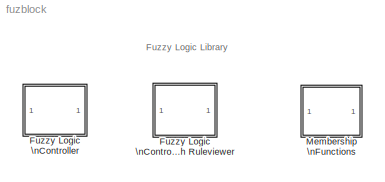
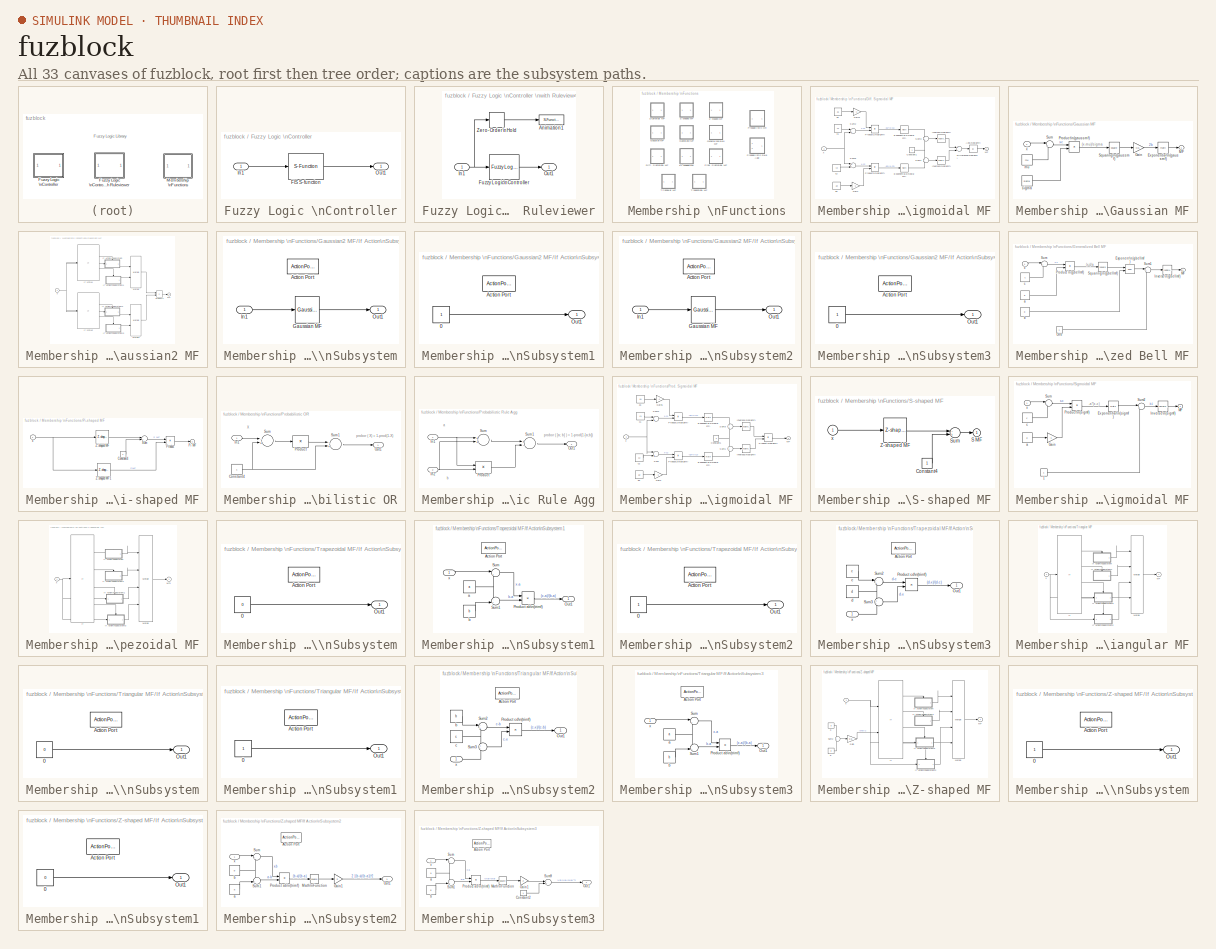
[diagram: thumbnail index - all 33 canvases of the model, root first then tree order]
MODEL fuzblock
KIND library
BLOCK [SubSystem] Fuzzy Logic \nController
  EnableExecutionContextPropagation = on
  MaskDescription = FIS
  MaskDisplay = plot(0, -0.3, 6, -0.3, 0, 1.2, 6, 1.2, [0 6], [0 0], [1 2 3],[0 1 0],[2 3 4],[0 1 0],[3 4 5],[0 1 0])
  MaskEnableString = on
  MaskHelp = web(['file:///' docroot '/toolbox/fuzzy/fuzzylogiccontroller.html']);
  MaskIconFrame = on
  MaskIconOpaque = on
  MaskIconRotate = none
  MaskIconUnits = autoscale
  MaskInitialization = fis = fuzblockmask(gcb,fis);
  MaskPromptString = FIS File or Structure:
  MaskSelfModifiable = on
  MaskStyleString = edit
  MaskToolTipString = on
  MaskTunableValueString = on
  MaskType = FIS
  MaskVariables = fis=@1;
  MaskVisibilityString = on
  MinAlgLoopOccurrences = off
  Ports = [1, 1]
  TreatAsAtomicUnit = off
BLOCK [SubSystem] Fuzzy Logic \nController \nwith Ruleviewer
  EnableExecutionContextPropagation = on
  MaskCallbackString = |
  MaskDescription = FIS with a ruleviewer for fuzzy logic rules.
  MaskDisplay = plot(0, -0.3, 6, -0.3, 0, 1.2, 6, 1.2, [0 6], [0 0], [1 2 3],[0 1 0],[2 3 4],[0 1 0],[3 4 5],[0 1 0])
  MaskEnableString = on,on
  MaskHelp = web(['file:///' docroot '/toolbox/fuzzy/fuzzylogiccontrollerwithr.html']);
  MaskIconFrame = on
  MaskIconOpaque = on
  MaskIconRotate = none
  MaskIconUnits = autoscale
  MaskPromptString = FIS matrix|Refresh rate (sec)
  MaskStyleString = edit,edit
  MaskTabNameString = ,
  MaskToolTipString = on,on
  MaskTunableValueString = on,on
  MaskType = FIS
  MaskValueString = fis|2
  MaskVarAliasString = ,
  MaskVariables = fismatrix=@1;Ts=@2;
  MaskVisibilityString = on,on
  MinAlgLoopOccurrences = off
  Ports = [1, 1]
  TreatAsAtomicUnit = off
BLOCK [S-Function] Fuzzy Logic \nController \nwith Ruleviewer/Animation1
  FunctionName = animrule
  Parameters = fismatrix
  Ports = [1]
BLOCK [Reference] Fuzzy Logic \nController \nwith Ruleviewer/Fuzzy Logic\nController  REF=fuzblock/Fuzzy Logic \nController  (lib defined in mdl_858b3b3e7478)
  Ports = [1, 1]
  SourceBlock = fuzblock/Fuzzy Logic \nController
  SourceType = FIS
  fis = fismatrix
BLOCK [Inport] Fuzzy Logic \nController \nwith Ruleviewer/In1
  IconDisplay = Port number
  LatchInput = off
BLOCK [Outport] Fuzzy Logic \nController \nwith Ruleviewer/Out1
  BusOutputAsStruct = off
  IconDisplay = Port number
  InitialOutput = 0
BLOCK [ZeroOrderHold] Fuzzy Logic \nController \nwith Ruleviewer/Zero-Order\nHold
  SampleTime = Ts
BLOCK [S-Function] Fuzzy Logic \nController/FIS S-function
  FunctionName = sffis
  Parameters = fis
  Ports = [1, 1]
  SFunctionModules = sfsup
BLOCK [Inport] Fuzzy Logic \nController/In1
  IconDisplay = Port number
  LatchInput = off
BLOCK [Outport] Fuzzy Logic \nController/Out1
  BusOutputAsStruct = off
  IconDisplay = Port number
BLOCK [SubSystem] Membership \nFunctions
  EnableExecutionContextPropagation = on
  MaskDisplay = disp('MF')
  MaskIconFrame = on
  MaskIconOpaque = on
  MaskIconRotate = none
  MaskIconUnits = autoscale
  MaskType = MF Library
  MinAlgLoopOccurrences = off
  Ports = []
  TreatAsAtomicUnit = off
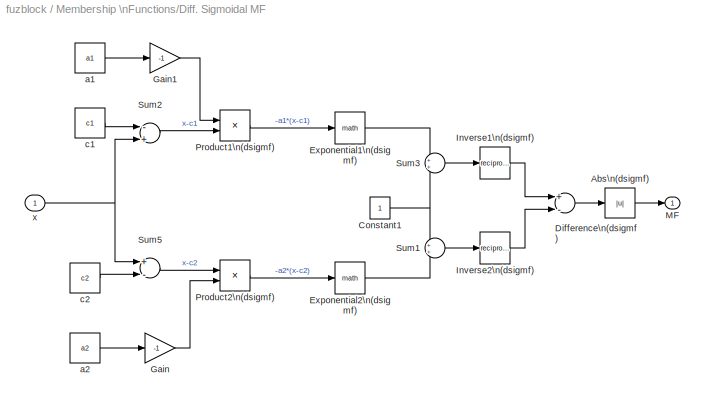
BLOCK [SubSystem] Membership \nFunctions/Diff. Sigmoidal MF
  EnableExecutionContextPropagation = on
  MaskCallbackString = |||
  MaskDescription = \"Difference of two sigmoids\" membership function. The two sigmoid curves are given by\n\n        fk ( x ) = 1 / ( 1 + exp( -ak ( x - ck) ) )      k=1,2\n\nThe parameters a1 and a2 control the slopes of the left and right curves. The parameters c1 and c2 control the points of inflection for the left and right curves. The parameters a1 and a2 should be positive.
  MaskDisplay = plot(x,y);
  MaskEnableString = on,on,on,on
  MaskHelp = web(['file:///' docroot '/toolbox/fuzzy/membershipfunctionslibrar.html']);
  MaskIconFrame = on
  MaskIconOpaque = on
  MaskIconRotate = none
  MaskIconUnits = autoscale
  MaskInitialization = x=-10:0.5:10;\nparams=[3 -5 1 5];\ny=dsigmf(x,params);
  MaskPromptString = Left curve a1:|Left curve c1:|Right curve a2:|Right curve c2:
  MaskStyleString = edit,edit,edit,edit
  MaskTabNameString = ,,,
  MaskToolTipString = on,on,on,on
  MaskTunableValueString = on,on,on,on
  MaskType = dsigmf
  MaskValueString = 3|-5|1|5
  MaskVarAliasString = ,,,
  MaskVariables = a1=@1;c1=@2;a2=@3;c2=@4;
  MaskVisibilityString = on,on,on,on
  MinAlgLoopOccurrences = off
  Ports = [1, 1]
  TreatAsAtomicUnit = off
BLOCK [Abs] Membership \nFunctions/Diff. Sigmoidal MF/Abs\n(dsigmf)
  ZeroCross = off
BLOCK [Constant] Membership \nFunctions/Diff. Sigmoidal MF/Constant1
BLOCK [Sum] Membership \nFunctions/Diff. Sigmoidal MF/Difference\n(dsigmf)
  Inputs = +-
  Ports = [2, 1]
BLOCK [Math] Membership \nFunctions/Diff. Sigmoidal MF/Exponential1\n(dsigmf)
  Ports = [1, 1]
BLOCK [Math] Membership \nFunctions/Diff. Sigmoidal MF/Exponential2\n(dsigmf)
  Ports = [1, 1]
BLOCK [Gain] Membership \nFunctions/Diff. Sigmoidal MF/Gain
  Gain = -1
BLOCK [Gain] Membership \nFunctions/Diff. Sigmoidal MF/Gain1
  Gain = -1
BLOCK [Math] Membership \nFunctions/Diff. Sigmoidal MF/Inverse1\n(dsigmf)
  Operator = reciprocal
  Ports = [1, 1]
BLOCK [Math] Membership \nFunctions/Diff. Sigmoidal MF/Inverse2\n(dsigmf)
  Operator = reciprocal
  Ports = [1, 1]
BLOCK [Outport] Membership \nFunctions/Diff. Sigmoidal MF/MF
  BusOutputAsStruct = off
  IconDisplay = Port number
BLOCK [Product] Membership \nFunctions/Diff. Sigmoidal MF/Product1\n(dsigmf)
  Inputs = **
  Ports = [2, 1]
  RndMeth = Floor
BLOCK [Product] Membership \nFunctions/Diff. Sigmoidal MF/Product2\n(dsigmf)
  Inputs = **
  Ports = [2, 1]
  RndMeth = Floor
BLOCK [Sum] Membership \nFunctions/Diff. Sigmoidal MF/Sum1
  IconShape = round
  Ports = [2, 1]
BLOCK [Sum] Membership \nFunctions/Diff. Sigmoidal MF/Sum2
  Inputs = -+
  Ports = [2, 1]
BLOCK [Sum] Membership \nFunctions/Diff. Sigmoidal MF/Sum3
  IconShape = round
  Ports = [2, 1]
BLOCK [Sum] Membership \nFunctions/Diff. Sigmoidal MF/Sum5
  Inputs = +-
  Ports = [2, 1]
BLOCK [Constant] Membership \nFunctions/Diff. Sigmoidal MF/a1
  Value = a1
BLOCK [Constant] Membership \nFunctions/Diff. Sigmoidal MF/a2
  Value = a2
BLOCK [Constant] Membership \nFunctions/Diff. Sigmoidal MF/c1
  Value = c1
BLOCK [Constant] Membership \nFunctions/Diff. Sigmoidal MF/c2
  Value = c2
BLOCK [Inport] Membership \nFunctions/Diff. Sigmoidal MF/x
  IconDisplay = Port number
  LatchInput = off
BLOCK [SubSystem] Membership \nFunctions/Gaussian MF
  EnableExecutionContextPropagation = on
  MaskCallbackString = |
  MaskDescription = Symmetric Gaussian membership function given by\n\n        f ( x ) = exp ^ ( ( - 0.5 ( x - c) ^ 2 ) / sigma ^ 2 )\n\nwhere c is the mean and sigma is the variance.
  MaskDisplay = plot(x,y);
  MaskEnableString = on,on
  MaskHelp = web(['file:///' docroot '/toolbox/fuzzy/membershipfunctionslibrar.html']);
  MaskIconFrame = on
  MaskIconOpaque = on
  MaskIconRotate = none
  MaskIconUnits = autoscale
  MaskInitialization = x=-10:0.5:10;\nparams=[7 0];\ny=gaussmf(x,params);
  MaskPromptString = Variance sigma:|Mean c:
  MaskStyleString = edit,edit
  MaskTabNameString = ,
  MaskToolTipString = on,on
  MaskTunableValueString = on,on
  MaskType = gaussmf
  MaskValueString = 1|0
  MaskVarAliasString = ,
  MaskVariables = sigma=@1;mu=@2;
  MaskVisibilityString = on,on
  MinAlgLoopOccurrences = off
  Ports = [1, 1]
  TreatAsAtomicUnit = off
BLOCK [Math] Membership \nFunctions/Gaussian MF/Exponential\n(gaussmf)
  Ports = [1, 1]
BLOCK [Gain] Membership \nFunctions/Gaussian MF/Gain
  Gain = -0.5
BLOCK [Outport] Membership \nFunctions/Gaussian MF/MF
  BusOutputAsStruct = off
  IconDisplay = Port number
BLOCK [Product] Membership \nFunctions/Gaussian MF/Product\n(gaussmf)
  Inputs = */
  Ports = [2, 1]
  RndMeth = Floor
BLOCK [Math] Membership \nFunctions/Gaussian MF/Squaring\n(gaussmf)
  Operator = square
  Ports = [1, 1]
BLOCK [Sum] Membership \nFunctions/Gaussian MF/Sum
  IconShape = round
  Inputs = |+-
  Ports = [2, 1]
BLOCK [Constant] Membership \nFunctions/Gaussian MF/mu
  Value = mu
BLOCK [Constant] Membership \nFunctions/Gaussian MF/sigma
  Value = sigma
BLOCK [Inport] Membership \nFunctions/Gaussian MF/x
  IconDisplay = Port number
  LatchInput = off
BLOCK [SubSystem] Membership \nFunctions/Gaussian2 MF
  EnableExecutionContextPropagation = on
  MaskCallbackString = |||
  MaskDescription = \"Combination of two Gaussians\" membership function. The two Gaussian functions are given by\n\n        fk ( x ) = exp ^ ( ( - 0.5 ( x - ck) ^ 2 ) / sigmak ^ 2 )    k=1,2\n\nThe parameters c1 and sigma1 are the mean and variance defining the leftmost curve. The parameters c2 and sigma2 are the mean and variance defining the rightmost curve.
  MaskDisplay = plot(x,y);
  MaskEnableString = on,on,on,on
  MaskHelp = web(['file:///' docroot '/toolbox/fuzzy/membershipfunctionslibrar.html']);
  MaskIconFrame = on
  MaskIconOpaque = on
  MaskIconRotate = none
  MaskIconUnits = autoscale
  MaskInitialization = x=-10:0.5:10;\nparams=[3 -1 1 5];\ny=gauss2mf(x,params);
  MaskPromptString = Variance for left curve sigma1:|Mean for left curve c1:|Variance for right curve sigma2:|Mean for right curve c2:
  MaskStyleString = edit,edit,edit,edit
  MaskTabNameString = ,,,
  MaskToolTipString = on,on,on,on
  MaskTunableValueString = on,on,on,on
  MaskType = gauss2mf
  MaskValueString = 3|-1|1|5
  MaskVarAliasString = ,,,
  MaskVariables = sigma1=@1;mu1=@2;sigma2=@3;mu2=@4;
  MaskVisibilityString = on,on,on,on
  MinAlgLoopOccurrences = off
  Ports = [1, 1]
  TreatAsAtomicUnit = off
BLOCK [SubSystem] Membership \nFunctions/Gaussian2 MF/If Action\nSubsystem
  EnableExecutionContextPropagation = on
  MinAlgLoopOccurrences = off
  Ports = [1, 1, 0, 0, 0, 0, 0, 1]
  TreatAsAtomicUnit = on
BLOCK [ActionPort] Membership \nFunctions/Gaussian2 MF/If Action\nSubsystem/Action Port
BLOCK [Reference] Membership \nFunctions/Gaussian2 MF/If Action\nSubsystem/Gaussian MF  REF=fuzblock/Membership \nFunctions/Gaussian MF  (lib defined in mdl_858b3b3e7478)
  Ports = [1, 1]
  ShowPortLabels = on
  SourceBlock = fuzblock/Membership \nFunctions/Gaussian MF
  SourceType = gaussmf
  mu = mu1
  sigma = sigma1
BLOCK [Inport] Membership \nFunctions/Gaussian2 MF/If Action\nSubsystem/In1
  IconDisplay = Port number
  LatchInput = off
BLOCK [Outport] Membership \nFunctions/Gaussian2 MF/If Action\nSubsystem/Out1
  BusOutputAsStruct = off
  IconDisplay = Port number
  InitialOutput = 0
BLOCK [SubSystem] Membership \nFunctions/Gaussian2 MF/If Action\nSubsystem1
  EnableExecutionContextPropagation = on
  MinAlgLoopOccurrences = off
  Ports = [0, 1, 0, 0, 0, 0, 0, 1]
  TreatAsAtomicUnit = on
BLOCK [Constant] Membership \nFunctions/Gaussian2 MF/If Action\nSubsystem1/0
BLOCK [ActionPort] Membership \nFunctions/Gaussian2 MF/If Action\nSubsystem1/Action Port
BLOCK [Outport] Membership \nFunctions/Gaussian2 MF/If Action\nSubsystem1/Out1
  BusOutputAsStruct = off
  IconDisplay = Port number
  InitialOutput = 1
BLOCK [SubSystem] Membership \nFunctions/Gaussian2 MF/If Action\nSubsystem2
  EnableExecutionContextPropagation = on
  MinAlgLoopOccurrences = off
  Ports = [1, 1, 0, 0, 0, 0, 0, 1]
  TreatAsAtomicUnit = on
BLOCK [ActionPort] Membership \nFunctions/Gaussian2 MF/If Action\nSubsystem2/Action Port
BLOCK [Reference] Membership \nFunctions/Gaussian2 MF/If Action\nSubsystem2/Gaussian MF  REF=fuzblock/Membership \nFunctions/Gaussian MF  (lib defined in mdl_858b3b3e7478)
  Ports = [1, 1]
  ShowPortLabels = on
  SourceBlock = fuzblock/Membership \nFunctions/Gaussian MF
  SourceType = gaussmf
  mu = mu2
  sigma = sigma2
BLOCK [Inport] Membership \nFunctions/Gaussian2 MF/If Action\nSubsystem2/In1
  IconDisplay = Port number
  LatchInput = off
BLOCK [Outport] Membership \nFunctions/Gaussian2 MF/If Action\nSubsystem2/Out1
  BusOutputAsStruct = off
  IconDisplay = Port number
  InitialOutput = 0
BLOCK [SubSystem] Membership \nFunctions/Gaussian2 MF/If Action\nSubsystem3
  EnableExecutionContextPropagation = on
  MinAlgLoopOccurrences = off
  Ports = [0, 1, 0, 0, 0, 0, 0, 1]
  TreatAsAtomicUnit = on
BLOCK [Constant] Membership \nFunctions/Gaussian2 MF/If Action\nSubsystem3/0
BLOCK [ActionPort] Membership \nFunctions/Gaussian2 MF/If Action\nSubsystem3/Action Port
BLOCK [Outport] Membership \nFunctions/Gaussian2 MF/If Action\nSubsystem3/Out1
  BusOutputAsStruct = off
  IconDisplay = Port number
  InitialOutput = 1
BLOCK [If] Membership \nFunctions/Gaussian2 MF/If x<mu1
  IfExpression = u1 <= mu1
  Ports = [1, 2]
  ZeroCross = off
BLOCK [If] Membership \nFunctions/Gaussian2 MF/If x>mu2
  IfExpression = u1 >= mu2
  Ports = [1, 2]
  ZeroCross = off
BLOCK [Outport] Membership \nFunctions/Gaussian2 MF/MF
  BusOutputAsStruct = off
  IconDisplay = Port number
BLOCK [Merge] Membership \nFunctions/Gaussian2 MF/Merge
  Ports = [2, 1]
BLOCK [Merge] Membership \nFunctions/Gaussian2 MF/Merge1
  Ports = [2, 1]
BLOCK [Product] Membership \nFunctions/Gaussian2 MF/Product1
  Ports = [2, 1]
  RndMeth = Floor
BLOCK [Inport] Membership \nFunctions/Gaussian2 MF/x
  IconDisplay = Port number
  LatchInput = off
BLOCK [SubSystem] Membership \nFunctions/Generalized Bell MF
  EnableExecutionContextPropagation = on
  MaskCallbackString = ||
  MaskDescription = Generalized bell membership function given by\n\n        f ( x ) = 1 / ( 1 + | ( x - c) / a | ^ 2b )\n\nThe parameters a and b vary the width of the curve and the parameter c locates the center of the curve. The parameter b should be positive.
  MaskDisplay = plot(x,y);
  MaskEnableString = on,on,on
  MaskHelp = web(['file:///' docroot '/toolbox/fuzzy/membershipfunctionslibrar.html']);
  MaskIconFrame = on
  MaskIconOpaque = on
  MaskIconRotate = none
  MaskIconUnits = autoscale
  MaskInitialization = x=-10:0.5:10;\nparams=[5 4 0];\ny=gbellmf(x,params);
  MaskPromptString = a:|b:|c:
  MaskStyleString = edit,edit,edit
  MaskTabNameString = ,,
  MaskToolTipString = on,on,on
  MaskTunableValueString = on,on,on
  MaskType = gbellmf
  MaskValueString = 5|4|0
  MaskVarAliasString = ,,
  MaskVariables = a=@1;b=@2;c=@3;
  MaskVisibilityString = on,on,on
  MinAlgLoopOccurrences = off
  Ports = [1, 1]
  TreatAsAtomicUnit = off
BLOCK [Math] Membership \nFunctions/Generalized Bell MF/Exponent\n(gbellmf)
  Operator = pow
  Ports = [2, 1]
BLOCK [Math] Membership \nFunctions/Generalized Bell MF/Inverse\n(gbellmf)
  Operator = reciprocal
  Ports = [1, 1]
BLOCK [Outport] Membership \nFunctions/Generalized Bell MF/MF
  BusOutputAsStruct = off
  IconDisplay = Port number
BLOCK [Constant] Membership \nFunctions/Generalized Bell MF/One
BLOCK [Product] Membership \nFunctions/Generalized Bell MF/Product \n(gbellmf)
  Inputs = */
  Ports = [2, 1]
  RndMeth = Floor
BLOCK [Math] Membership \nFunctions/Generalized Bell MF/Squaring\n(gbellmf)
  Operator = square
  Ports = [1, 1]
BLOCK [Sum] Membership \nFunctions/Generalized Bell MF/Sum
  IconShape = round
  Inputs = |+-
  Ports = [2, 1]
BLOCK [Sum] Membership \nFunctions/Generalized Bell MF/Sum1
  IconShape = round
  Inputs = |++
  Ports = [2, 1]
BLOCK [Constant] Membership \nFunctions/Generalized Bell MF/a
  Value = a
BLOCK [Constant] Membership \nFunctions/Generalized Bell MF/b
  Value = b
BLOCK [Constant] Membership \nFunctions/Generalized Bell MF/c
  Value = c
BLOCK [Inport] Membership \nFunctions/Generalized Bell MF/x
  IconDisplay = Port number
  LatchInput = off
BLOCK [SubSystem] Membership \nFunctions/Pi-shaped MF
  EnableExecutionContextPropagation = on
  MaskCallbackString = |||
  MaskDescription = Pi-shaped membership function.\n\nThe parameters a and d  set the left and right base point or \"feet\" of the curve.  The parameters b and c set the left and right top point or \"shoulders\" of the curve.
  MaskDisplay = plot(x,y);
  MaskEnableString = on,on,on,on
  MaskHelp = web(['file:///' docroot '/toolbox/fuzzy/membershipfunctionslibrar.html']);
  MaskIconFrame = on
  MaskIconOpaque = on
  MaskIconRotate = none
  MaskIconUnits = autoscale
  MaskInitialization = x=-10:0.5:10;\nparams=[-9 -7 2 8];\ny=pimf(x,params);
  MaskPromptString = Left base point a:|Left top point b:|Right top point c:|Right base point d:
  MaskStyleString = edit,edit,edit,edit
  MaskTabNameString = ,,,
  MaskToolTipString = on,on,on,on
  MaskTunableValueString = on,on,on,on
  MaskType = pimf
  MaskValueString = -9|-7|2|8
  MaskVarAliasString = ,,,
  MaskVariables = a=@1;b=@2;c=@3;d=@4;
  MaskVisibilityString = on,on,on,on
  MinAlgLoopOccurrences = off
  Ports = [1, 1]
  TreatAsAtomicUnit = off
BLOCK [Constant] Membership \nFunctions/Pi-shaped MF/Constant4
BLOCK [Outport] Membership \nFunctions/Pi-shaped MF/Pi MF
  BusOutputAsStruct = off
  IconDisplay = Port number
BLOCK [Product] Membership \nFunctions/Pi-shaped MF/Product
  Ports = [2, 1]
  RndMeth = Floor
BLOCK [Sum] Membership \nFunctions/Pi-shaped MF/Sum
  Inputs = -+
  Ports = [2, 1]
BLOCK [Reference] Membership \nFunctions/Pi-shaped MF/Z-shaped MF  REF=fuzblock/Membership \nFunctions/Z-shaped MF  (lib defined in mdl_858b3b3e7478)
  Ports = [1, 1]
  ShowPortLabels = on
  SourceBlock = fuzblock/Membership \nFunctions/Z-shaped MF
  SourceType = zmf
  a = a
  b = b
BLOCK [Reference] Membership \nFunctions/Pi-shaped MF/Z-shaped MF1  REF=fuzblock/Membership \nFunctions/Z-shaped MF  (lib defined in mdl_858b3b3e7478)
  Ports = [1, 1]
  ShowPortLabels = on
  SourceBlock = fuzblock/Membership \nFunctions/Z-shaped MF
  SourceType = zmf
  a = c
  b = d
BLOCK [Inport] Membership \nFunctions/Pi-shaped MF/x
  IconDisplay = Port number
  LatchInput = off
BLOCK [SubSystem] Membership \nFunctions/Probabilistic OR
  EnableExecutionContextPropagation = on
  MaskDescription = Probabilistic OR function.\n\n        y = 1 - prod( 1 - x )\n\nThis block outputs the probabilistic OR value for the vector signal input.
  MaskDisplay = disp('Probor')
  MaskHelp = web(['file:///' docroot '/toolbox/fuzzy/membershipfunctionslibrar.html']);
  MaskIconFrame = on
  MaskIconOpaque = on
  MaskIconRotate = none
  MaskIconUnits = autoscale
  MaskType = probor OR method
  MinAlgLoopOccurrences = off
  Ports = [1, 1]
  TreatAsAtomicUnit = off
BLOCK [Constant] Membership \nFunctions/Probabilistic OR/Constant4
BLOCK [Inport] Membership \nFunctions/Probabilistic OR/In1
  IconDisplay = Port number
  LatchInput = off
BLOCK [Outport] Membership \nFunctions/Probabilistic OR/Out1
  BusOutputAsStruct = off
  IconDisplay = Port number
BLOCK [Product] Membership \nFunctions/Probabilistic OR/Product
  Inputs = 1
  Ports = [1, 1]
  RndMeth = Floor
BLOCK [Sum] Membership \nFunctions/Probabilistic OR/Sum
  Inputs = -+
  Ports = [2, 1]
BLOCK [Sum] Membership \nFunctions/Probabilistic OR/Sum1
  Inputs = -+
  Ports = [2, 1]
BLOCK [SubSystem] Membership \nFunctions/Probabilistic Rule Agg
  EnableExecutionContextPropagation = on
  MaskDescription = Probabilistic OR, rule aggregation method.\n\n        y = 1 - prod( 1 - [ a ; b ] )\n\nThis block outputs the element-wise(.*) probabilistic OR value of the two inputs. The two inputs a and b, are row vectors.
  MaskDisplay = disp('Probor')
  MaskHelp = web(['file:///' docroot '/toolbox/fuzzy/membershipfunctionslibrar.html']);
  MaskIconFrame = on
  MaskIconOpaque = on
  MaskIconRotate = none
  MaskIconUnits = autoscale
  MaskType = probor rule agg method
  MinAlgLoopOccurrences = off
  Ports = [2, 1]
  TreatAsAtomicUnit = off
BLOCK [Inport] Membership \nFunctions/Probabilistic Rule Agg/In1
  IconDisplay = Port number
  LatchInput = off
BLOCK [Inport] Membership \nFunctions/Probabilistic Rule Agg/In2
  IconDisplay = Port number
  LatchInput = off
  Port = 2
BLOCK [Outport] Membership \nFunctions/Probabilistic Rule Agg/Out1
  BusOutputAsStruct = off
  IconDisplay = Port number
BLOCK [Product] Membership \nFunctions/Probabilistic Rule Agg/Product
  Ports = [2, 1]
  RndMeth = Floor
BLOCK [Sum] Membership \nFunctions/Probabilistic Rule Agg/Sum
  Ports = [2, 1]
BLOCK [Sum] Membership \nFunctions/Probabilistic Rule Agg/Sum1
  Inputs = +-
  Ports = [2, 1]
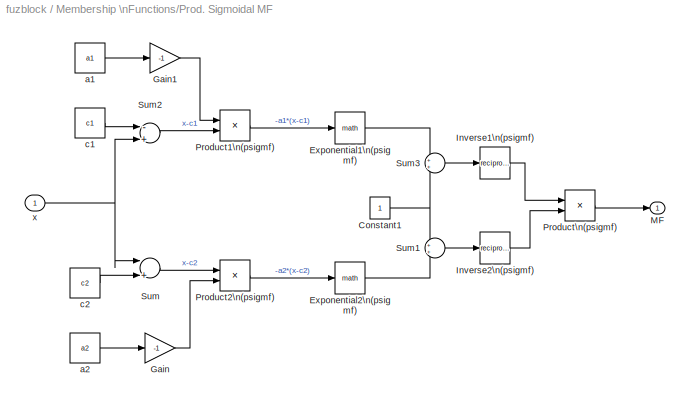
BLOCK [SubSystem] Membership \nFunctions/Prod. Sigmoidal MF
  EnableExecutionContextPropagation = on
  MaskCallbackString = |||
  MaskDescription = \"Product of two sigmoids\" membership function. The two sigmoid curves are given by\n\n        fk ( x ) = 1 / ( 1 + exp( -ak ( x - ck) ) )      k=1,2\n\nThe parameters a1 and a2 control the slopes of the left and right curves. The parameters c1 and c2 control the points of inflection for the left and right curves. Parameters a1 and a2 should be positive and negative respectively.
  MaskDisplay = plot(x,y);
  MaskEnableString = on,on,on,on
  MaskHelp = web(['file:///' docroot '/toolbox/fuzzy/membershipfunctionslibrar.html']);
  MaskIconFrame = on
  MaskIconOpaque = on
  MaskIconRotate = none
  MaskIconUnits = autoscale
  MaskInitialization = x=-10:0.5:10;\nparams=[2 -5 -5 5];\ny=psigmf(x,params);
  MaskPromptString = Left curve a1:|Left curve c1:|Right curve a2:|Right curve c2:
  MaskStyleString = edit,edit,edit,edit
  MaskTabNameString = ,,,
  MaskToolTipString = on,on,on,on
  MaskTunableValueString = on,on,on,on
  MaskType = psigmf
  MaskValueString = 2|-5|-5|5
  MaskVarAliasString = ,,,
  MaskVariables = a1=@1;c1=@2;a2=@3;c2=@4;
  MaskVisibilityString = on,on,on,on
  MinAlgLoopOccurrences = off
  Ports = [1, 1]
  TreatAsAtomicUnit = off
BLOCK [Constant] Membership \nFunctions/Prod. Sigmoidal MF/Constant1
BLOCK [Math] Membership \nFunctions/Prod. Sigmoidal MF/Exponential1\n(psigmf)
  Ports = [1, 1]
BLOCK [Math] Membership \nFunctions/Prod. Sigmoidal MF/Exponential2\n(psigmf)
  Ports = [1, 1]
BLOCK [Gain] Membership \nFunctions/Prod. Sigmoidal MF/Gain
  Gain = -1
BLOCK [Gain] Membership \nFunctions/Prod. Sigmoidal MF/Gain1
  Gain = -1
BLOCK [Math] Membership \nFunctions/Prod. Sigmoidal MF/Inverse1\n(psigmf)
  Operator = reciprocal
  Ports = [1, 1]
BLOCK [Math] Membership \nFunctions/Prod. Sigmoidal MF/Inverse2\n(psigmf)
  Operator = reciprocal
  Ports = [1, 1]
BLOCK [Outport] Membership \nFunctions/Prod. Sigmoidal MF/MF
  BusOutputAsStruct = off
  IconDisplay = Port number
BLOCK [Product] Membership \nFunctions/Prod. Sigmoidal MF/Product1\n(psigmf)
  Inputs = **
  Ports = [2, 1]
  RndMeth = Floor
BLOCK [Product] Membership \nFunctions/Prod. Sigmoidal MF/Product2\n(psigmf)
  Inputs = **
  Ports = [2, 1]
  RndMeth = Floor
BLOCK [Product] Membership \nFunctions/Prod. Sigmoidal MF/Product\n(psigmf)
  Inputs = **
  Ports = [2, 1]
  RndMeth = Floor
BLOCK [Sum] Membership \nFunctions/Prod. Sigmoidal MF/Sum
  Inputs = |+-
  Ports = [2, 1]
BLOCK [Sum] Membership \nFunctions/Prod. Sigmoidal MF/Sum1
  IconShape = round
  Ports = [2, 1]
BLOCK [Sum] Membership \nFunctions/Prod. Sigmoidal MF/Sum2
  Inputs = -+
  Ports = [2, 1]
BLOCK [Sum] Membership \nFunctions/Prod. Sigmoidal MF/Sum3
  IconShape = round
  Ports = [2, 1]
BLOCK [Constant] Membership \nFunctions/Prod. Sigmoidal MF/a1
  Value = a1
BLOCK [Constant] Membership \nFunctions/Prod. Sigmoidal MF/a2
  Value = a2
BLOCK [Constant] Membership \nFunctions/Prod. Sigmoidal MF/c1
  Value = c1
BLOCK [Constant] Membership \nFunctions/Prod. Sigmoidal MF/c2
  Value = c2
BLOCK [Inport] Membership \nFunctions/Prod. Sigmoidal MF/x
  IconDisplay = Port number
  LatchInput = off
BLOCK [SubSystem] Membership \nFunctions/S-shaped MF
  EnableExecutionContextPropagation = on
  MaskCallbackString = |
  MaskDescription = S-shaped membership function.\n\nGoing from left to right the function increases from 0 to 1. The parameters a and b locate the left and right extremes of the sloped portion of the curve.
  MaskDisplay = plot(x,y);
  MaskEnableString = on,on
  MaskHelp = web(['file:///' docroot '/toolbox/fuzzy/membershipfunctionslibrar.html']);
  MaskIconFrame = on
  MaskIconOpaque = on
  MaskIconRotate = none
  MaskIconUnits = autoscale
  MaskInitialization = x=-10:0.5:10;\nparams=[-3 3];\ny=smf(x,params);
  MaskPromptString = Left point a:|Right point b:
  MaskStyleString = edit,edit
  MaskTabNameString = ,
  MaskToolTipString = on,on
  MaskTunableValueString = on,on
  MaskType = smf
  MaskValueString = -3|3
  MaskVarAliasString = ,
  MaskVariables = a=@1;b=@2;
  MaskVisibilityString = on,on
  MinAlgLoopOccurrences = off
  Ports = [1, 1]
  TreatAsAtomicUnit = off
BLOCK [Constant] Membership \nFunctions/S-shaped MF/Constant4
BLOCK [Outport] Membership \nFunctions/S-shaped MF/S MF
  BusOutputAsStruct = off
  IconDisplay = Port number
BLOCK [Sum] Membership \nFunctions/S-shaped MF/Sum
  Inputs = -+
  Ports = [2, 1]
BLOCK [Reference] Membership \nFunctions/S-shaped MF/Z-shaped MF  REF=fuzblock/Membership \nFunctions/Z-shaped MF  (lib defined in mdl_858b3b3e7478)
  Ports = [1, 1]
  SourceBlock = fuzblock/Membership \nFunctions/Z-shaped MF
  SourceType = zmf
  a = a
  b = b
BLOCK [Inport] Membership \nFunctions/S-shaped MF/x
  IconDisplay = Port number
  LatchInput = off
BLOCK [SubSystem] Membership \nFunctions/Sigmoidal MF
  EnableExecutionContextPropagation = on
  MaskCallbackString = |
  MaskDescription = Sigmoidal membership function given by\n\n        f ( x ) = 1 / ( 1 + exp( -a ( x - c) ) )\n\nWhen the sign of a is positive the curve increases from left to right. Conversely, when the sign of a is negative the curve decreases from left to right. The parameter c sets the point of inflection of the curve.
  MaskDisplay = plot(x,y);
  MaskEnableString = on,on
  MaskHelp = web(['file:///' docroot '/toolbox/fuzzy/membershipfunctionslibrar.html']);
  MaskIconFrame = on
  MaskIconOpaque = on
  MaskIconRotate = none
  MaskIconUnits = autoscale
  MaskInitialization = x=-10:0.5:10;\nparams=[1 0];\ny=sigmf(x,params);
  MaskPromptString = a:|c:
  MaskStyleString = edit,edit
  MaskTabNameString = ,
  MaskToolTipString = on,on
  MaskTunableValueString = on,on
  MaskType = sigmf
  MaskValueString = 1|0
  MaskVarAliasString = ,
  MaskVariables = a=@1;c=@2;
  MaskVisibilityString = on,on
  MinAlgLoopOccurrences = off
  Ports = [1, 1]
  TreatAsAtomicUnit = off
BLOCK [Constant] Membership \nFunctions/Sigmoidal MF/1
BLOCK [Math] Membership \nFunctions/Sigmoidal MF/Exponential\n(sigmf)
  Ports = [1, 1]
BLOCK [Gain] Membership \nFunctions/Sigmoidal MF/Gain
  Gain = -1
BLOCK [Math] Membership \nFunctions/Sigmoidal MF/Inverse\n(sigmf)
  Operator = reciprocal
  Ports = [1, 1]
BLOCK [Outport] Membership \nFunctions/Sigmoidal MF/MF
  BusOutputAsStruct = off
  IconDisplay = Port number
BLOCK [Product] Membership \nFunctions/Sigmoidal MF/Product\n(sigmf)
  Inputs = **
  Ports = [2, 1]
  RndMeth = Floor
BLOCK [Sum] Membership \nFunctions/Sigmoidal MF/Sum
  IconShape = round
  Inputs = |+-
  Ports = [2, 1]
BLOCK [Sum] Membership \nFunctions/Sigmoidal MF/Sum2
  IconShape = round
  Inputs = |++
  Ports = [2, 1]
BLOCK [Constant] Membership \nFunctions/Sigmoidal MF/a
  Value = a
BLOCK [Constant] Membership \nFunctions/Sigmoidal MF/c
  Value = c
BLOCK [Inport] Membership \nFunctions/Sigmoidal MF/x
  IconDisplay = Port number
  LatchInput = off
BLOCK [SubSystem] Membership \nFunctions/Trapezoidal MF
  EnableExecutionContextPropagation = on
  MaskCallbackString = |||
  MaskDescription = Trapezoidal membership function.\n\nThe parameters a and d set the left and right \"feet\", or base points, of the trapezoid. The parameters b and c set the \"shoulders\", or top of the trapezoid.
  MaskDisplay = plot(x,y);
  MaskEnableString = on,on,on,on
  MaskHelp = web(['file:///' docroot '/toolbox/fuzzy/membershipfunctionslibrar.html']);
  MaskIconFrame = on
  MaskIconOpaque = on
  MaskIconRotate = none
  MaskIconUnits = autoscale
  MaskInitialization = x=-10:0.5:10;\nparams=[-8 -4 2 9];\ny=trapmf(x,params);\n
  MaskPromptString = Left base point a:|Left top point b:|Right top point c:|Right base point d:
  MaskStyleString = edit,edit,edit,edit
  MaskTabNameString = ,,,
  MaskToolTipString = on,on,on,on
  MaskTunableValueString = on,on,on,on
  MaskType = trapmf
  MaskValueString = -8|-4|2|9
  MaskVarAliasString = ,,,
  MaskVariables = a=@1;b=@2;c=@3;d=@4;
  MaskVisibilityString = on,on,on,on
  MinAlgLoopOccurrences = off
  Ports = [1, 1]
  TreatAsAtomicUnit = off
BLOCK [If] Membership \nFunctions/Trapezoidal MF/If
  ElseIfExpressions = (u1 >= b) & (u1 <= c), u1 < b
  IfExpression = (u1 < a) | (u1>d)
  Ports = [1, 4]
  ZeroCross = off
BLOCK [SubSystem] Membership \nFunctions/Trapezoidal MF/If Action\nSubsystem
  EnableExecutionContextPropagation = on
  MinAlgLoopOccurrences = off
  Ports = [0, 1, 0, 0, 0, 0, 0, 1]
  TreatAsAtomicUnit = on
BLOCK [Constant] Membership \nFunctions/Trapezoidal MF/If Action\nSubsystem/0
  Value = 0
BLOCK [ActionPort] Membership \nFunctions/Trapezoidal MF/If Action\nSubsystem/Action Port
BLOCK [Outport] Membership \nFunctions/Trapezoidal MF/If Action\nSubsystem/Out1
  BusOutputAsStruct = off
  IconDisplay = Port number
  InitialOutput = 0
BLOCK [SubSystem] Membership \nFunctions/Trapezoidal MF/If Action\nSubsystem1
  EnableExecutionContextPropagation = on
  MinAlgLoopOccurrences = off
  Ports = [1, 1, 0, 0, 0, 0, 0, 1]
  TreatAsAtomicUnit = on
BLOCK [ActionPort] Membership \nFunctions/Trapezoidal MF/If Action\nSubsystem1/Action Port
BLOCK [Outport] Membership \nFunctions/Trapezoidal MF/If Action\nSubsystem1/Out1
  BusOutputAsStruct = off
  IconDisplay = Port number
BLOCK [Product] Membership \nFunctions/Trapezoidal MF/If Action\nSubsystem1/Product ab\n(trimf)
  Inputs = */
  Ports = [2, 1]
  RndMeth = Floor
BLOCK [Sum] Membership \nFunctions/Trapezoidal MF/If Action\nSubsystem1/Sum
  IconShape = round
  Inputs = |+-
  Ports = [2, 1]
BLOCK [Sum] Membership \nFunctions/Trapezoidal MF/If Action\nSubsystem1/Sum1
  IconShape = round
  Inputs = -+
  Ports = [2, 1]
BLOCK [Constant] Membership \nFunctions/Trapezoidal MF/If Action\nSubsystem1/a
  Value = a
BLOCK [Constant] Membership \nFunctions/Trapezoidal MF/If Action\nSubsystem1/b
  Value = b
BLOCK [Inport] Membership \nFunctions/Trapezoidal MF/If Action\nSubsystem1/x
  IconDisplay = Port number
  LatchInput = off
BLOCK [SubSystem] Membership \nFunctions/Trapezoidal MF/If Action\nSubsystem2
  EnableExecutionContextPropagation = on
  MinAlgLoopOccurrences = off
  Ports = [0, 1, 0, 0, 0, 0, 0, 1]
  TreatAsAtomicUnit = on
BLOCK [Constant] Membership \nFunctions/Trapezoidal MF/If Action\nSubsystem2/0
BLOCK [ActionPort] Membership \nFunctions/Trapezoidal MF/If Action\nSubsystem2/Action Port
  ActionType = elseif
BLOCK [Outport] Membership \nFunctions/Trapezoidal MF/If Action\nSubsystem2/Out1
  BusOutputAsStruct = off
  IconDisplay = Port number
  InitialOutput = 0
BLOCK [SubSystem] Membership \nFunctions/Trapezoidal MF/If Action\nSubsystem3
  EnableExecutionContextPropagation = on
  MinAlgLoopOccurrences = off
  Ports = [1, 1, 0, 0, 0, 0, 0, 1]
  TreatAsAtomicUnit = on
BLOCK [ActionPort] Membership \nFunctions/Trapezoidal MF/If Action\nSubsystem3/Action Port
  ActionType = else
BLOCK [Outport] Membership \nFunctions/Trapezoidal MF/If Action\nSubsystem3/Out1
  BusOutputAsStruct = off
  IconDisplay = Port number
BLOCK [Product] Membership \nFunctions/Trapezoidal MF/If Action\nSubsystem3/Product cd\n(trimf)
  Inputs = /*
  Ports = [2, 1]
  RndMeth = Floor
BLOCK [Sum] Membership \nFunctions/Trapezoidal MF/If Action\nSubsystem3/Sum2
  IconShape = round
  Inputs = -+
  Ports = [2, 1]
BLOCK [Sum] Membership \nFunctions/Trapezoidal MF/If Action\nSubsystem3/Sum3
  IconShape = round
  Inputs = +-
  Ports = [2, 1]
BLOCK [Constant] Membership \nFunctions/Trapezoidal MF/If Action\nSubsystem3/c
  Value = c
BLOCK [Constant] Membership \nFunctions/Trapezoidal MF/If Action\nSubsystem3/d
  Value = d
BLOCK [Inport] Membership \nFunctions/Trapezoidal MF/If Action\nSubsystem3/x
  IconDisplay = Port number
  LatchInput = off
BLOCK [Outport] Membership \nFunctions/Trapezoidal MF/MF1
  BusOutputAsStruct = off
  IconDisplay = Port number
BLOCK [Merge] Membership \nFunctions/Trapezoidal MF/Merge
  Inputs = 4
  Ports = [4, 1]
BLOCK [Inport] Membership \nFunctions/Trapezoidal MF/x
  IconDisplay = Port number
  LatchInput = off
BLOCK [SubSystem] Membership \nFunctions/Triangular MF
  EnableExecutionContextPropagation = on
  MaskCallbackString = ||
  MaskDescription = Triangular membership function.\n\nThe parameters a and c set the left and right \"feet\", or base points, of the triangle. The parameter b sets the location of the triangle peak.
  MaskDisplay = plot(x,y);
  MaskEnableString = on,on,on
  MaskHelp = web(['file:///' docroot '/toolbox/fuzzy/membershipfunctionslibrar.html']);
  MaskIconFrame = on
  MaskIconOpaque = on
  MaskIconRotate = none
  MaskIconUnits = autoscale
  MaskInitialization = x=-10:0.5:10;\nparams=[-8 3 6];\ny=trimf(x,params);
  MaskPromptString = Left base point a:|Peak location b:|Right base point c:
  MaskStyleString = edit,edit,edit
  MaskTabNameString = ,,
  MaskToolTipString = on,on,on
  MaskTunableValueString = on,on,on
  MaskType = trimf
  MaskValueString = -8|3|6
  MaskVarAliasString = ,,
  MaskVariables = a=@1;b=@2;c=@3;
  MaskVisibilityString = on,on,on
  MinAlgLoopOccurrences = off
  Ports = [1, 1]
  TreatAsAtomicUnit = off
BLOCK [If] Membership \nFunctions/Triangular MF/If
  ElseIfExpressions = u1==b, u1 < b
  IfExpression = (u1<a) | (u1>c)
  Ports = [1, 4]
  ZeroCross = off
BLOCK [SubSystem] Membership \nFunctions/Triangular MF/If Action\nSubsystem
  EnableExecutionContextPropagation = on
  MinAlgLoopOccurrences = off
  Ports = [0, 1, 0, 0, 0, 0, 0, 1]
  TreatAsAtomicUnit = on
BLOCK [Constant] Membership \nFunctions/Triangular MF/If Action\nSubsystem/0
  Value = 0
BLOCK [ActionPort] Membership \nFunctions/Triangular MF/If Action\nSubsystem/Action Port
  ActionType = then
BLOCK [Outport] Membership \nFunctions/Triangular MF/If Action\nSubsystem/Out1
  BusOutputAsStruct = off
  IconDisplay = Port number
  InitialOutput = 0
BLOCK [SubSystem] Membership \nFunctions/Triangular MF/If Action\nSubsystem1
  EnableExecutionContextPropagation = on
  MinAlgLoopOccurrences = off
  Ports = [0, 1, 0, 0, 0, 0, 0, 1]
  TreatAsAtomicUnit = on
BLOCK [Constant] Membership \nFunctions/Triangular MF/If Action\nSubsystem1/0
BLOCK [ActionPort] Membership \nFunctions/Triangular MF/If Action\nSubsystem1/Action Port
  ActionType = elseif
BLOCK [Outport] Membership \nFunctions/Triangular MF/If Action\nSubsystem1/Out1
  BusOutputAsStruct = off
  IconDisplay = Port number
  InitialOutput = 1
BLOCK [SubSystem] Membership \nFunctions/Triangular MF/If Action\nSubsystem2
  EnableExecutionContextPropagation = on
  MinAlgLoopOccurrences = off
  Ports = [1, 1, 0, 0, 0, 0, 0, 1]
  TreatAsAtomicUnit = on
BLOCK [ActionPort] Membership \nFunctions/Triangular MF/If Action\nSubsystem2/Action Port
  ActionType = else
BLOCK [Outport] Membership \nFunctions/Triangular MF/If Action\nSubsystem2/Out1
  BusOutputAsStruct = off
  IconDisplay = Port number
BLOCK [Product] Membership \nFunctions/Triangular MF/If Action\nSubsystem2/Product cd\n(trimf)
  Inputs = /*
  Ports = [2, 1]
  RndMeth = Floor
BLOCK [Sum] Membership \nFunctions/Triangular MF/If Action\nSubsystem2/Sum2
  IconShape = round
  Inputs = -+
  Ports = [2, 1]
BLOCK [Sum] Membership \nFunctions/Triangular MF/If Action\nSubsystem2/Sum3
  IconShape = round
  Inputs = +-
  Ports = [2, 1]
BLOCK [Constant] Membership \nFunctions/Triangular MF/If Action\nSubsystem2/b
  Value = b
BLOCK [Constant] Membership \nFunctions/Triangular MF/If Action\nSubsystem2/c
  Value = c
BLOCK [Inport] Membership \nFunctions/Triangular MF/If Action\nSubsystem2/x
  IconDisplay = Port number
  LatchInput = off
BLOCK [SubSystem] Membership \nFunctions/Triangular MF/If Action\nSubsystem3
  EnableExecutionContextPropagation = on
  MinAlgLoopOccurrences = off
  Ports = [1, 1, 0, 0, 0, 0, 0, 1]
  TreatAsAtomicUnit = on
BLOCK [ActionPort] Membership \nFunctions/Triangular MF/If Action\nSubsystem3/Action Port
  ActionType = elseif
BLOCK [Outport] Membership \nFunctions/Triangular MF/If Action\nSubsystem3/Out1
  BusOutputAsStruct = off
  IconDisplay = Port number
BLOCK [Product] Membership \nFunctions/Triangular MF/If Action\nSubsystem3/Product ab\n(trimf)
  Inputs = */
  Ports = [2, 1]
  RndMeth = Floor
BLOCK [Sum] Membership \nFunctions/Triangular MF/If Action\nSubsystem3/Sum
  IconShape = round
  Inputs = |+-
  Ports = [2, 1]
BLOCK [Sum] Membership \nFunctions/Triangular MF/If Action\nSubsystem3/Sum1
  IconShape = round
  Inputs = -+
  Ports = [2, 1]
BLOCK [Constant] Membership \nFunctions/Triangular MF/If Action\nSubsystem3/a
  Value = a
BLOCK [Constant] Membership \nFunctions/Triangular MF/If Action\nSubsystem3/b
  Value = b
BLOCK [Inport] Membership \nFunctions/Triangular MF/If Action\nSubsystem3/x
  IconDisplay = Port number
  LatchInput = off
BLOCK [Outport] Membership \nFunctions/Triangular MF/MF
  BusOutputAsStruct = off
  IconDisplay = Port number
BLOCK [Merge] Membership \nFunctions/Triangular MF/Merge
  Inputs = 4
  Ports = [4, 1]
BLOCK [Inport] Membership \nFunctions/Triangular MF/x
  IconDisplay = Port number
  LatchInput = off
BLOCK [SubSystem] Membership \nFunctions/Z-shaped MF
  EnableExecutionContextPropagation = on
  MaskCallbackString = |
  MaskDescription = Z-shaped membership function.\n\nGoing from left to right the function decreases from 1 to 0. The parameters a  and b locate the left and right extremes of the sloped portion of the curve.
  MaskDisplay = plot(x,y);
  MaskEnableString = on,on
  MaskHelp = web(['file:///' docroot '/toolbox/fuzzy/membershipfunctionslibrar.html']);
  MaskIconFrame = on
  MaskIconOpaque = on
  MaskIconRotate = none
  MaskIconUnits = autoscale
  MaskInitialization = x=-10:0.5:10;\nparams=[-3 3];\ny=zmf(x,params);
  MaskPromptString = Left point a:|Right point b:
  MaskStyleString = edit,edit
  MaskTabNameString = ,
  MaskToolTipString = on,on
  MaskTunableValueString = on,on
  MaskType = zmf
  MaskValueString = -3|3
  MaskVarAliasString = ,
  MaskVariables = a=@1;b=@2;
  MaskVisibilityString = on,on
  MinAlgLoopOccurrences = off
  Ports = [1, 1]
  TreatAsAtomicUnit = off
BLOCK [Gain] Membership \nFunctions/Z-shaped MF/Gain
  Gain = 0.5
BLOCK [If] Membership \nFunctions/Z-shaped MF/If
  ElseIfExpressions = u1>=b, u1 <= u2
  IfExpression = u1<=a
  NumInputs = 2
  Ports = [2, 4]
  ZeroCross = off
BLOCK [SubSystem] Membership \nFunctions/Z-shaped MF/If Action\nSubsystem
  EnableExecutionContextPropagation = on
  MinAlgLoopOccurrences = off
  Ports = [0, 1, 0, 0, 0, 0, 0, 1]
  TreatAsAtomicUnit = on
BLOCK [Constant] Membership \nFunctions/Z-shaped MF/If Action\nSubsystem/0
BLOCK [ActionPort] Membership \nFunctions/Z-shaped MF/If Action\nSubsystem/Action Port
BLOCK [Outport] Membership \nFunctions/Z-shaped MF/If Action\nSubsystem/Out1
  BusOutputAsStruct = off
  IconDisplay = Port number
  InitialOutput = 0
BLOCK [SubSystem] Membership \nFunctions/Z-shaped MF/If Action\nSubsystem1
  EnableExecutionContextPropagation = on
  MinAlgLoopOccurrences = off
  Ports = [0, 1, 0, 0, 0, 0, 0, 1]
  TreatAsAtomicUnit = on
BLOCK [Constant] Membership \nFunctions/Z-shaped MF/If Action\nSubsystem1/0
  Value = 0
BLOCK [ActionPort] Membership \nFunctions/Z-shaped MF/If Action\nSubsystem1/Action Port
BLOCK [Outport] Membership \nFunctions/Z-shaped MF/If Action\nSubsystem1/Out1
  BusOutputAsStruct = off
  IconDisplay = Port number
  InitialOutput = 1
BLOCK [SubSystem] Membership \nFunctions/Z-shaped MF/If Action\nSubsystem2
  EnableExecutionContextPropagation = on
  MinAlgLoopOccurrences = off
  Ports = [1, 1, 0, 0, 0, 0, 0, 1]
  TreatAsAtomicUnit = on
BLOCK [ActionPort] Membership \nFunctions/Z-shaped MF/If Action\nSubsystem2/Action Port
BLOCK [Gain] Membership \nFunctions/Z-shaped MF/If Action\nSubsystem2/Gain1
  Gain = 2
BLOCK [Math] Membership \nFunctions/Z-shaped MF/If Action\nSubsystem2/Math\nFunction
  Operator = square
  Ports = [1, 1]
BLOCK [Outport] Membership \nFunctions/Z-shaped MF/If Action\nSubsystem2/Out1
  BusOutputAsStruct = off
  IconDisplay = Port number
BLOCK [Product] Membership \nFunctions/Z-shaped MF/If Action\nSubsystem2/Product ab\n(trimf)
  Inputs = */
  Ports = [2, 1]
  RndMeth = Floor
BLOCK [Sum] Membership \nFunctions/Z-shaped MF/If Action\nSubsystem2/Sum
  IconShape = round
  Inputs = |+-
  Ports = [2, 1]
BLOCK [Sum] Membership \nFunctions/Z-shaped MF/If Action\nSubsystem2/Sum1
  IconShape = round
  Inputs = -+
  Ports = [2, 1]
BLOCK [Constant] Membership \nFunctions/Z-shaped MF/If Action\nSubsystem2/a
  Value = a
BLOCK [Constant] Membership \nFunctions/Z-shaped MF/If Action\nSubsystem2/b
  Value = b
BLOCK [Inport] Membership \nFunctions/Z-shaped MF/If Action\nSubsystem2/x
  IconDisplay = Port number
  LatchInput = off
BLOCK [SubSystem] Membership \nFunctions/Z-shaped MF/If Action\nSubsystem3
  EnableExecutionContextPropagation = on
  MinAlgLoopOccurrences = off
  Ports = [1, 1, 0, 0, 0, 0, 0, 1]
  TreatAsAtomicUnit = on
BLOCK [ActionPort] Membership \nFunctions/Z-shaped MF/If Action\nSubsystem3/Action Port
BLOCK [Constant] Membership \nFunctions/Z-shaped MF/If Action\nSubsystem3/Constant2
BLOCK [Gain] Membership \nFunctions/Z-shaped MF/If Action\nSubsystem3/Gain1
  Gain = 2
BLOCK [Math] Membership \nFunctions/Z-shaped MF/If Action\nSubsystem3/Math\nFunction
  Operator = square
  Ports = [1, 1]
BLOCK [Outport] Membership \nFunctions/Z-shaped MF/If Action\nSubsystem3/Out1
  BusOutputAsStruct = off
  IconDisplay = Port number
BLOCK [Product] Membership \nFunctions/Z-shaped MF/If Action\nSubsystem3/Product ab\n(trimf)
  Inputs = */
  Ports = [2, 1]
  RndMeth = Floor
BLOCK [Sum] Membership \nFunctions/Z-shaped MF/If Action\nSubsystem3/Sum
  IconShape = round
  Inputs = |+-
  Ports = [2, 1]
BLOCK [Sum] Membership \nFunctions/Z-shaped MF/If Action\nSubsystem3/Sum1
  IconShape = round
  Inputs = -+
  Ports = [2, 1]
BLOCK [Sum] Membership \nFunctions/Z-shaped MF/If Action\nSubsystem3/Sum9
  Inputs = -+
  Ports = [2, 1]
BLOCK [Constant] Membership \nFunctions/Z-shaped MF/If Action\nSubsystem3/a
  Value = a
BLOCK [Constant] Membership \nFunctions/Z-shaped MF/If Action\nSubsystem3/b
  Value = b
BLOCK [Inport] Membership \nFunctions/Z-shaped MF/If Action\nSubsystem3/x
  IconDisplay = Port number
  LatchInput = off
BLOCK [Outport] Membership \nFunctions/Z-shaped MF/MF
  BusOutputAsStruct = off
  IconDisplay = Port number
BLOCK [Merge] Membership \nFunctions/Z-shaped MF/Merge
  Inputs = 4
  Ports = [4, 1]
BLOCK [Sum] Membership \nFunctions/Z-shaped MF/Sum2
  IconShape = round
  Ports = [2, 1]
BLOCK [Constant] Membership \nFunctions/Z-shaped MF/a
  Value = a
BLOCK [Constant] Membership \nFunctions/Z-shaped MF/b
  Value = b
BLOCK [Inport] Membership \nFunctions/Z-shaped MF/x
  IconDisplay = Port number
  LatchInput = off
ANNOTATION (root): Fuzzy Logic Library
ANNOTATION Membership \nFunctions/Gaussian MF: (x-mu)/sigma
ANNOTATION Membership \nFunctions/Generalized Bell MF: (x-c)/a
ANNOTATION Membership \nFunctions/Probabilistic OR: X
ANNOTATION Membership \nFunctions/Probabilistic OR: probor ( X) = 1-prod(1-X)
ANNOTATION Membership \nFunctions/Probabilistic Rule Agg: a
ANNOTATION Membership \nFunctions/Probabilistic Rule Agg: b
ANNOTATION Membership \nFunctions/Probabilistic Rule Agg: probor ( [a; b] ) = 1-prod(1-[a;b])
ANNOTATION Membership \nFunctions/Sigmoidal MF: -a*(x-c)
LINE Fuzzy Logic \nController \nwith Ruleviewer/Fuzzy Logic\nController:1 -> Fuzzy Logic \nController \nwith Ruleviewer/Out1:1
NET Fuzzy Logic \nController \nwith Ruleviewer/In1:1 -> Fuzzy Logic \nController \nwith Ruleviewer/Fuzzy Logic\nController:1, Fuzzy Logic \nController \nwith Ruleviewer/Zero-Order\nHold:1
LINE Fuzzy Logic \nController \nwith Ruleviewer/Zero-Order\nHold:1 -> Fuzzy Logic \nController \nwith Ruleviewer/Animation1:1
LINE Fuzzy Logic \nController/FIS S-function:1 -> Fuzzy Logic \nController/Out1:1
LINE Fuzzy Logic \nController/In1:1 -> Fuzzy Logic \nController/FIS S-function:1
LINE Membership \nFunctions/Diff. Sigmoidal MF/Abs\n(dsigmf):1 -> Membership \nFunctions/Diff. Sigmoidal MF/MF:1
NET Membership \nFunctions/Diff. Sigmoidal MF/Constant1:1 -> Membership \nFunctions/Diff. Sigmoidal MF/Sum1:1, Membership \nFunctions/Diff. Sigmoidal MF/Sum3:2
LINE Membership \nFunctions/Diff. Sigmoidal MF/Difference\n(dsigmf):1 -> Membership \nFunctions/Diff. Sigmoidal MF/Abs\n(dsigmf):1
LINE Membership \nFunctions/Diff. Sigmoidal MF/Exponential1\n(dsigmf):1 -> Membership \nFunctions/Diff. Sigmoidal MF/Sum3:1
LINE Membership \nFunctions/Diff. Sigmoidal MF/Exponential2\n(dsigmf):1 -> Membership \nFunctions/Diff. Sigmoidal MF/Sum1:2
LINE Membership \nFunctions/Diff. Sigmoidal MF/Gain1:1 -> Membership \nFunctions/Diff. Sigmoidal MF/Product1\n(dsigmf):1
LINE Membership \nFunctions/Diff. Sigmoidal MF/Gain:1 -> Membership \nFunctions/Diff. Sigmoidal MF/Product2\n(dsigmf):2
LINE Membership \nFunctions/Diff. Sigmoidal MF/Inverse1\n(dsigmf):1 -> Membership \nFunctions/Diff. Sigmoidal MF/Difference\n(dsigmf):1
LINE Membership \nFunctions/Diff. Sigmoidal MF/Inverse2\n(dsigmf):1 -> Membership \nFunctions/Diff. Sigmoidal MF/Difference\n(dsigmf):2
LINE Membership \nFunctions/Diff. Sigmoidal MF/Product1\n(dsigmf):1 -> Membership \nFunctions/Diff. Sigmoidal MF/Exponential1\n(dsigmf):1
LINE Membership \nFunctions/Diff. Sigmoidal MF/Product2\n(dsigmf):1 -> Membership \nFunctions/Diff. Sigmoidal MF/Exponential2\n(dsigmf):1
LINE Membership \nFunctions/Diff. Sigmoidal MF/Sum1:1 -> Membership \nFunctions/Diff. Sigmoidal MF/Inverse2\n(dsigmf):1
LINE Membership \nFunctions/Diff. Sigmoidal MF/Sum2:1 -> Membership \nFunctions/Diff. Sigmoidal MF/Product1\n(dsigmf):2
LINE Membership \nFunctions/Diff. Sigmoidal MF/Sum3:1 -> Membership \nFunctions/Diff. Sigmoidal MF/Inverse1\n(dsigmf):1
LINE Membership \nFunctions/Diff. Sigmoidal MF/Sum5:1 -> Membership \nFunctions/Diff. Sigmoidal MF/Product2\n(dsigmf):1
LINE Membership \nFunctions/Diff. Sigmoidal MF/a1:1 -> Membership \nFunctions/Diff. Sigmoidal MF/Gain1:1
LINE Membership \nFunctions/Diff. Sigmoidal MF/a2:1 -> Membership \nFunctions/Diff. Sigmoidal MF/Gain:1
LINE Membership \nFunctions/Diff. Sigmoidal MF/c1:1 -> Membership \nFunctions/Diff. Sigmoidal MF/Sum2:1
LINE Membership \nFunctions/Diff. Sigmoidal MF/c2:1 -> Membership \nFunctions/Diff. Sigmoidal MF/Sum5:2
NET Membership \nFunctions/Diff. Sigmoidal MF/x:1 -> Membership \nFunctions/Diff. Sigmoidal MF/Sum2:2, Membership \nFunctions/Diff. Sigmoidal MF/Sum5:1
LINE Membership \nFunctions/Gaussian MF/Exponential\n(gaussmf):1 -> Membership \nFunctions/Gaussian MF/MF:1
LINE Membership \nFunctions/Gaussian MF/Gain:1 -> Membership \nFunctions/Gaussian MF/Exponential\n(gaussmf):1
LINE Membership \nFunctions/Gaussian MF/Product\n(gaussmf):1 -> Membership \nFunctions/Gaussian MF/Squaring\n(gaussmf):1
LINE Membership \nFunctions/Gaussian MF/Squaring\n(gaussmf):1 -> Membership \nFunctions/Gaussian MF/Gain:1
LINE Membership \nFunctions/Gaussian MF/Sum:1 -> Membership \nFunctions/Gaussian MF/Product\n(gaussmf):1
LINE Membership \nFunctions/Gaussian MF/mu:1 -> Membership \nFunctions/Gaussian MF/Sum:2
LINE Membership \nFunctions/Gaussian MF/sigma:1 -> Membership \nFunctions/Gaussian MF/Product\n(gaussmf):2
LINE Membership \nFunctions/Gaussian MF/x:1 -> Membership \nFunctions/Gaussian MF/Sum:1
LINE Membership \nFunctions/Gaussian2 MF/If Action\nSubsystem/Gaussian MF:1 -> Membership \nFunctions/Gaussian2 MF/If Action\nSubsystem/Out1:1
LINE Membership \nFunctions/Gaussian2 MF/If Action\nSubsystem/In1:1 -> Membership \nFunctions/Gaussian2 MF/If Action\nSubsystem/Gaussian MF:1
LINE Membership \nFunctions/Gaussian2 MF/If Action\nSubsystem1/0:1 -> Membership \nFunctions/Gaussian2 MF/If Action\nSubsystem1/Out1:1
LINE Membership \nFunctions/Gaussian2 MF/If Action\nSubsystem1:1 -> Membership \nFunctions/Gaussian2 MF/Merge:2
LINE Membership \nFunctions/Gaussian2 MF/If Action\nSubsystem2/Gaussian MF:1 -> Membership \nFunctions/Gaussian2 MF/If Action\nSubsystem2/Out1:1
LINE Membership \nFunctions/Gaussian2 MF/If Action\nSubsystem2/In1:1 -> Membership \nFunctions/Gaussian2 MF/If Action\nSubsystem2/Gaussian MF:1
LINE Membership \nFunctions/Gaussian2 MF/If Action\nSubsystem2:1 -> Membership \nFunctions/Gaussian2 MF/Merge1:1
LINE Membership \nFunctions/Gaussian2 MF/If Action\nSubsystem3/0:1 -> Membership \nFunctions/Gaussian2 MF/If Action\nSubsystem3/Out1:1
LINE Membership \nFunctions/Gaussian2 MF/If Action\nSubsystem3:1 -> Membership \nFunctions/Gaussian2 MF/Merge1:2
LINE Membership \nFunctions/Gaussian2 MF/If Action\nSubsystem:1 -> Membership \nFunctions/Gaussian2 MF/Merge:1
LINE Membership \nFunctions/Gaussian2 MF/If x<mu1:1 -> Membership \nFunctions/Gaussian2 MF/If Action\nSubsystem:ifaction
LINE Membership \nFunctions/Gaussian2 MF/If x<mu1:2 -> Membership \nFunctions/Gaussian2 MF/If Action\nSubsystem1:ifaction
LINE Membership \nFunctions/Gaussian2 MF/If x>mu2:1 -> Membership \nFunctions/Gaussian2 MF/If Action\nSubsystem2:ifaction
LINE Membership \nFunctions/Gaussian2 MF/If x>mu2:2 -> Membership \nFunctions/Gaussian2 MF/If Action\nSubsystem3:ifaction
LINE Membership \nFunctions/Gaussian2 MF/Merge1:1 -> Membership \nFunctions/Gaussian2 MF/Product1:2
LINE Membership \nFunctions/Gaussian2 MF/Merge:1 -> Membership \nFunctions/Gaussian2 MF/Product1:1
LINE Membership \nFunctions/Gaussian2 MF/Product1:1 -> Membership \nFunctions/Gaussian2 MF/MF:1
NET Membership \nFunctions/Gaussian2 MF/x:1 -> Membership \nFunctions/Gaussian2 MF/If Action\nSubsystem2:1, Membership \nFunctions/Gaussian2 MF/If Action\nSubsystem:1, Membership \nFunctions/Gaussian2 MF/If x<mu1:1, Membership \nFunctions/Gaussian2 MF/If x>mu2:1
LINE Membership \nFunctions/Generalized Bell MF/Exponent\n(gbellmf):1 -> Membership \nFunctions/Generalized Bell MF/Sum1:1
LINE Membership \nFunctions/Generalized Bell MF/Inverse\n(gbellmf):1 -> Membership \nFunctions/Generalized Bell MF/MF:1
LINE Membership \nFunctions/Generalized Bell MF/One:1 -> Membership \nFunctions/Generalized Bell MF/Sum1:2
LINE Membership \nFunctions/Generalized Bell MF/Product \n(gbellmf):1 -> Membership \nFunctions/Generalized Bell MF/Squaring\n(gbellmf):1
LINE Membership \nFunctions/Generalized Bell MF/Squaring\n(gbellmf):1 -> Membership \nFunctions/Generalized Bell MF/Exponent\n(gbellmf):1
LINE Membership \nFunctions/Generalized Bell MF/Sum1:1 -> Membership \nFunctions/Generalized Bell MF/Inverse\n(gbellmf):1
LINE Membership \nFunctions/Generalized Bell MF/Sum:1 -> Membership \nFunctions/Generalized Bell MF/Product \n(gbellmf):1
LINE Membership \nFunctions/Generalized Bell MF/a:1 -> Membership \nFunctions/Generalized Bell MF/Product \n(gbellmf):2
LINE Membership \nFunctions/Generalized Bell MF/b:1 -> Membership \nFunctions/Generalized Bell MF/Exponent\n(gbellmf):2
LINE Membership \nFunctions/Generalized Bell MF/c:1 -> Membership \nFunctions/Generalized Bell MF/Sum:2
LINE Membership \nFunctions/Generalized Bell MF/x:1 -> Membership \nFunctions/Generalized Bell MF/Sum:1
LINE Membership \nFunctions/Pi-shaped MF/Constant4:1 -> Membership \nFunctions/Pi-shaped MF/Sum:2
LINE Membership \nFunctions/Pi-shaped MF/Product:1 -> Membership \nFunctions/Pi-shaped MF/Pi MF:1
LINE Membership \nFunctions/Pi-shaped MF/Sum:1 -> Membership \nFunctions/Pi-shaped MF/Product:1
LINE Membership \nFunctions/Pi-shaped MF/Z-shaped MF1:1 -> Membership \nFunctions/Pi-shaped MF/Product:2
LINE Membership \nFunctions/Pi-shaped MF/Z-shaped MF:1 -> Membership \nFunctions/Pi-shaped MF/Sum:1
NET Membership \nFunctions/Pi-shaped MF/x:1 -> Membership \nFunctions/Pi-shaped MF/Z-shaped MF1:1, Membership \nFunctions/Pi-shaped MF/Z-shaped MF:1
NET Membership \nFunctions/Probabilistic OR/Constant4:1 -> Membership \nFunctions/Probabilistic OR/Sum1:2, Membership \nFunctions/Probabilistic OR/Sum:2
LINE Membership \nFunctions/Probabilistic OR/In1:1 -> Membership \nFunctions/Probabilistic OR/Sum:1
LINE Membership \nFunctions/Probabilistic OR/Product:1 -> Membership \nFunctions/Probabilistic OR/Sum1:1
LINE Membership \nFunctions/Probabilistic OR/Sum1:1 -> Membership \nFunctions/Probabilistic OR/Out1:1
LINE Membership \nFunctions/Probabilistic OR/Sum:1 -> Membership \nFunctions/Probabilistic OR/Product:1
NET Membership \nFunctions/Probabilistic Rule Agg/In1:1 -> Membership \nFunctions/Probabilistic Rule Agg/Product:1, Membership \nFunctions/Probabilistic Rule Agg/Sum:1
NET Membership \nFunctions/Probabilistic Rule Agg/In2:1 -> Membership \nFunctions/Probabilistic Rule Agg/Product:2, Membership \nFunctions/Probabilistic Rule Agg/Sum:2
LINE Membership \nFunctions/Probabilistic Rule Agg/Product:1 -> Membership \nFunctions/Probabilistic Rule Agg/Sum1:2
LINE Membership \nFunctions/Probabilistic Rule Agg/Sum1:1 -> Membership \nFunctions/Probabilistic Rule Agg/Out1:1
LINE Membership \nFunctions/Probabilistic Rule Agg/Sum:1 -> Membership \nFunctions/Probabilistic Rule Agg/Sum1:1
NET Membership \nFunctions/Prod. Sigmoidal MF/Constant1:1 -> Membership \nFunctions/Prod. Sigmoidal MF/Sum1:1, Membership \nFunctions/Prod. Sigmoidal MF/Sum3:2
LINE Membership \nFunctions/Prod. Sigmoidal MF/Exponential1\n(psigmf):1 -> Membership \nFunctions/Prod. Sigmoidal MF/Sum3:1
LINE Membership \nFunctions/Prod. Sigmoidal MF/Exponential2\n(psigmf):1 -> Membership \nFunctions/Prod. Sigmoidal MF/Sum1:2
LINE Membership \nFunctions/Prod. Sigmoidal MF/Gain1:1 -> Membership \nFunctions/Prod. Sigmoidal MF/Product1\n(psigmf):1
LINE Membership \nFunctions/Prod. Sigmoidal MF/Gain:1 -> Membership \nFunctions/Prod. Sigmoidal MF/Product2\n(psigmf):2
LINE Membership \nFunctions/Prod. Sigmoidal MF/Inverse1\n(psigmf):1 -> Membership \nFunctions/Prod. Sigmoidal MF/Product\n(psigmf):1
LINE Membership \nFunctions/Prod. Sigmoidal MF/Inverse2\n(psigmf):1 -> Membership \nFunctions/Prod. Sigmoidal MF/Product\n(psigmf):2
LINE Membership \nFunctions/Prod. Sigmoidal MF/Product1\n(psigmf):1 -> Membership \nFunctions/Prod. Sigmoidal MF/Exponential1\n(psigmf):1
LINE Membership \nFunctions/Prod. Sigmoidal MF/Product2\n(psigmf):1 -> Membership \nFunctions/Prod. Sigmoidal MF/Exponential2\n(psigmf):1
LINE Membership \nFunctions/Prod. Sigmoidal MF/Product\n(psigmf):1 -> Membership \nFunctions/Prod. Sigmoidal MF/MF:1
LINE Membership \nFunctions/Prod. Sigmoidal MF/Sum1:1 -> Membership \nFunctions/Prod. Sigmoidal MF/Inverse2\n(psigmf):1
LINE Membership \nFunctions/Prod. Sigmoidal MF/Sum2:1 -> Membership \nFunctions/Prod. Sigmoidal MF/Product1\n(psigmf):2
LINE Membership \nFunctions/Prod. Sigmoidal MF/Sum3:1 -> Membership \nFunctions/Prod. Sigmoidal MF/Inverse1\n(psigmf):1
LINE Membership \nFunctions/Prod. Sigmoidal MF/Sum:1 -> Membership \nFunctions/Prod. Sigmoidal MF/Product2\n(psigmf):1
LINE Membership \nFunctions/Prod. Sigmoidal MF/a1:1 -> Membership \nFunctions/Prod. Sigmoidal MF/Gain1:1
LINE Membership \nFunctions/Prod. Sigmoidal MF/a2:1 -> Membership \nFunctions/Prod. Sigmoidal MF/Gain:1
LINE Membership \nFunctions/Prod. Sigmoidal MF/c1:1 -> Membership \nFunctions/Prod. Sigmoidal MF/Sum2:1
LINE Membership \nFunctions/Prod. Sigmoidal MF/c2:1 -> Membership \nFunctions/Prod. Sigmoidal MF/Sum:2
NET Membership \nFunctions/Prod. Sigmoidal MF/x:1 -> Membership \nFunctions/Prod. Sigmoidal MF/Sum2:2, Membership \nFunctions/Prod. Sigmoidal MF/Sum:1
LINE Membership \nFunctions/S-shaped MF/Constant4:1 -> Membership \nFunctions/S-shaped MF/Sum:2
LINE Membership \nFunctions/S-shaped MF/Sum:1 -> Membership \nFunctions/S-shaped MF/S MF:1
LINE Membership \nFunctions/S-shaped MF/Z-shaped MF:1 -> Membership \nFunctions/S-shaped MF/Sum:1
LINE Membership \nFunctions/S-shaped MF/x:1 -> Membership \nFunctions/S-shaped MF/Z-shaped MF:1
LINE Membership \nFunctions/Sigmoidal MF/1:1 -> Membership \nFunctions/Sigmoidal MF/Sum2:2
LINE Membership \nFunctions/Sigmoidal MF/Exponential\n(sigmf):1 -> Membership \nFunctions/Sigmoidal MF/Sum2:1
LINE Membership \nFunctions/Sigmoidal MF/Gain:1 -> Membership \nFunctions/Sigmoidal MF/Product\n(sigmf):2
LINE Membership \nFunctions/Sigmoidal MF/Inverse\n(sigmf):1 -> Membership \nFunctions/Sigmoidal MF/MF:1
LINE Membership \nFunctions/Sigmoidal MF/Product\n(sigmf):1 -> Membership \nFunctions/Sigmoidal MF/Exponential\n(sigmf):1
LINE Membership \nFunctions/Sigmoidal MF/Sum2:1 -> Membership \nFunctions/Sigmoidal MF/Inverse\n(sigmf):1
LINE Membership \nFunctions/Sigmoidal MF/Sum:1 -> Membership \nFunctions/Sigmoidal MF/Product\n(sigmf):1
LINE Membership \nFunctions/Sigmoidal MF/a:1 -> Membership \nFunctions/Sigmoidal MF/Gain:1
LINE Membership \nFunctions/Sigmoidal MF/c:1 -> Membership \nFunctions/Sigmoidal MF/Sum:2
LINE Membership \nFunctions/Sigmoidal MF/x:1 -> Membership \nFunctions/Sigmoidal MF/Sum:1
LINE Membership \nFunctions/Trapezoidal MF/If Action\nSubsystem/0:1 -> Membership \nFunctions/Trapezoidal MF/If Action\nSubsystem/Out1:1
LINE Membership \nFunctions/Trapezoidal MF/If Action\nSubsystem1/Product ab\n(trimf):1 -> Membership \nFunctions/Trapezoidal MF/If Action\nSubsystem1/Out1:1
LINE Membership \nFunctions/Trapezoidal MF/If Action\nSubsystem1/Sum1:1 -> Membership \nFunctions/Trapezoidal MF/If Action\nSubsystem1/Product ab\n(trimf):2
LINE Membership \nFunctions/Trapezoidal MF/If Action\nSubsystem1/Sum:1 -> Membership \nFunctions/Trapezoidal MF/If Action\nSubsystem1/Product ab\n(trimf):1
NET Membership \nFunctions/Trapezoidal MF/If Action\nSubsystem1/a:1 -> Membership \nFunctions/Trapezoidal MF/If Action\nSubsystem1/Sum1:1, Membership \nFunctions/Trapezoidal MF/If Action\nSubsystem1/Sum:2
LINE Membership \nFunctions/Trapezoidal MF/If Action\nSubsystem1/b:1 -> Membership \nFunctions/Trapezoidal MF/If Action\nSubsystem1/Sum1:2
LINE Membership \nFunctions/Trapezoidal MF/If Action\nSubsystem1/x:1 -> Membership \nFunctions/Trapezoidal MF/If Action\nSubsystem1/Sum:1
LINE Membership \nFunctions/Trapezoidal MF/If Action\nSubsystem1:1 -> Membership \nFunctions/Trapezoidal MF/Merge:3
LINE Membership \nFunctions/Trapezoidal MF/If Action\nSubsystem2/0:1 -> Membership \nFunctions/Trapezoidal MF/If Action\nSubsystem2/Out1:1
LINE Membership \nFunctions/Trapezoidal MF/If Action\nSubsystem2:1 -> Membership \nFunctions/Trapezoidal MF/Merge:2
LINE Membership \nFunctions/Trapezoidal MF/If Action\nSubsystem3/Product cd\n(trimf):1 -> Membership \nFunctions/Trapezoidal MF/If Action\nSubsystem3/Out1:1
LINE Membership \nFunctions/Trapezoidal MF/If Action\nSubsystem3/Sum2:1 -> Membership \nFunctions/Trapezoidal MF/If Action\nSubsystem3/Product cd\n(trimf):1
LINE Membership \nFunctions/Trapezoidal MF/If Action\nSubsystem3/Sum3:1 -> Membership \nFunctions/Trapezoidal MF/If Action\nSubsystem3/Product cd\n(trimf):2
LINE Membership \nFunctions/Trapezoidal MF/If Action\nSubsystem3/c:1 -> Membership \nFunctions/Trapezoidal MF/If Action\nSubsystem3/Sum2:1
NET Membership \nFunctions/Trapezoidal MF/If Action\nSubsystem3/d:1 -> Membership \nFunctions/Trapezoidal MF/If Action\nSubsystem3/Sum2:2, Membership \nFunctions/Trapezoidal MF/If Action\nSubsystem3/Sum3:1
LINE Membership \nFunctions/Trapezoidal MF/If Action\nSubsystem3/x:1 -> Membership \nFunctions/Trapezoidal MF/If Action\nSubsystem3/Sum3:2
LINE Membership \nFunctions/Trapezoidal MF/If Action\nSubsystem3:1 -> Membership \nFunctions/Trapezoidal MF/Merge:4
LINE Membership \nFunctions/Trapezoidal MF/If Action\nSubsystem:1 -> Membership \nFunctions/Trapezoidal MF/Merge:1
LINE Membership \nFunctions/Trapezoidal MF/If:1 -> Membership \nFunctions/Trapezoidal MF/If Action\nSubsystem:ifaction
LINE Membership \nFunctions/Trapezoidal MF/If:2 -> Membership \nFunctions/Trapezoidal MF/If Action\nSubsystem2:ifaction
LINE Membership \nFunctions/Trapezoidal MF/If:3 -> Membership \nFunctions/Trapezoidal MF/If Action\nSubsystem1:ifaction
LINE Membership \nFunctions/Trapezoidal MF/If:4 -> Membership \nFunctions/Trapezoidal MF/If Action\nSubsystem3:ifaction
LINE Membership \nFunctions/Trapezoidal MF/Merge:1 -> Membership \nFunctions/Trapezoidal MF/MF1:1
NET Membership \nFunctions/Trapezoidal MF/x:1 -> Membership \nFunctions/Trapezoidal MF/If Action\nSubsystem1:1, Membership \nFunctions/Trapezoidal MF/If Action\nSubsystem3:1, Membership \nFunctions/Trapezoidal MF/If:1
LINE Membership \nFunctions/Triangular MF/If Action\nSubsystem/0:1 -> Membership \nFunctions/Triangular MF/If Action\nSubsystem/Out1:1
LINE Membership \nFunctions/Triangular MF/If Action\nSubsystem1/0:1 -> Membership \nFunctions/Triangular MF/If Action\nSubsystem1/Out1:1
LINE Membership \nFunctions/Triangular MF/If Action\nSubsystem1:1 -> Membership \nFunctions/Triangular MF/Merge:2
LINE Membership \nFunctions/Triangular MF/If Action\nSubsystem2/Product cd\n(trimf):1 -> Membership \nFunctions/Triangular MF/If Action\nSubsystem2/Out1:1
LINE Membership \nFunctions/Triangular MF/If Action\nSubsystem2/Sum2:1 -> Membership \nFunctions/Triangular MF/If Action\nSubsystem2/Product cd\n(trimf):1
LINE Membership \nFunctions/Triangular MF/If Action\nSubsystem2/Sum3:1 -> Membership \nFunctions/Triangular MF/If Action\nSubsystem2/Product cd\n(trimf):2
LINE Membership \nFunctions/Triangular MF/If Action\nSubsystem2/b:1 -> Membership \nFunctions/Triangular MF/If Action\nSubsystem2/Sum2:1
NET Membership \nFunctions/Triangular MF/If Action\nSubsystem2/c:1 -> Membership \nFunctions/Triangular MF/If Action\nSubsystem2/Sum2:2, Membership \nFunctions/Triangular MF/If Action\nSubsystem2/Sum3:1
LINE Membership \nFunctions/Triangular MF/If Action\nSubsystem2/x:1 -> Membership \nFunctions/Triangular MF/If Action\nSubsystem2/Sum3:2
LINE Membership \nFunctions/Triangular MF/If Action\nSubsystem2:1 -> Membership \nFunctions/Triangular MF/Merge:4
LINE Membership \nFunctions/Triangular MF/If Action\nSubsystem3/Product ab\n(trimf):1 -> Membership \nFunctions/Triangular MF/If Action\nSubsystem3/Out1:1
LINE Membership \nFunctions/Triangular MF/If Action\nSubsystem3/Sum1:1 -> Membership \nFunctions/Triangular MF/If Action\nSubsystem3/Product ab\n(trimf):2
LINE Membership \nFunctions/Triangular MF/If Action\nSubsystem3/Sum:1 -> Membership \nFunctions/Triangular MF/If Action\nSubsystem3/Product ab\n(trimf):1
NET Membership \nFunctions/Triangular MF/If Action\nSubsystem3/a:1 -> Membership \nFunctions/Triangular MF/If Action\nSubsystem3/Sum1:1, Membership \nFunctions/Triangular MF/If Action\nSubsystem3/Sum:2
LINE Membership \nFunctions/Triangular MF/If Action\nSubsystem3/b:1 -> Membership \nFunctions/Triangular MF/If Action\nSubsystem3/Sum1:2
LINE Membership \nFunctions/Triangular MF/If Action\nSubsystem3/x:1 -> Membership \nFunctions/Triangular MF/If Action\nSubsystem3/Sum:1
LINE Membership \nFunctions/Triangular MF/If Action\nSubsystem3:1 -> Membership \nFunctions/Triangular MF/Merge:3
LINE Membership \nFunctions/Triangular MF/If Action\nSubsystem:1 -> Membership \nFunctions/Triangular MF/Merge:1
LINE Membership \nFunctions/Triangular MF/If:1 -> Membership \nFunctions/Triangular MF/If Action\nSubsystem:ifaction
LINE Membership \nFunctions/Triangular MF/If:2 -> Membership \nFunctions/Triangular MF/If Action\nSubsystem1:ifaction
LINE Membership \nFunctions/Triangular MF/If:3 -> Membership \nFunctions/Triangular MF/If Action\nSubsystem3:ifaction
LINE Membership \nFunctions/Triangular MF/If:4 -> Membership \nFunctions/Triangular MF/If Action\nSubsystem2:ifaction
LINE Membership \nFunctions/Triangular MF/Merge:1 -> Membership \nFunctions/Triangular MF/MF:1
NET Membership \nFunctions/Triangular MF/x:1 -> Membership \nFunctions/Triangular MF/If Action\nSubsystem2:1, Membership \nFunctions/Triangular MF/If Action\nSubsystem3:1, Membership \nFunctions/Triangular MF/If:1
LINE Membership \nFunctions/Z-shaped MF/Gain:1 -> Membership \nFunctions/Z-shaped MF/If:2
LINE Membership \nFunctions/Z-shaped MF/If Action\nSubsystem/0:1 -> Membership \nFunctions/Z-shaped MF/If Action\nSubsystem/Out1:1
LINE Membership \nFunctions/Z-shaped MF/If Action\nSubsystem1/0:1 -> Membership \nFunctions/Z-shaped MF/If Action\nSubsystem1/Out1:1
LINE Membership \nFunctions/Z-shaped MF/If Action\nSubsystem1:1 -> Membership \nFunctions/Z-shaped MF/Merge:2
LINE Membership \nFunctions/Z-shaped MF/If Action\nSubsystem2/Gain1:1 -> Membership \nFunctions/Z-shaped MF/If Action\nSubsystem2/Out1:1
LINE Membership \nFunctions/Z-shaped MF/If Action\nSubsystem2/Math\nFunction:1 -> Membership \nFunctions/Z-shaped MF/If Action\nSubsystem2/Gain1:1
LINE Membership \nFunctions/Z-shaped MF/If Action\nSubsystem2/Product ab\n(trimf):1 -> Membership \nFunctions/Z-shaped MF/If Action\nSubsystem2/Math\nFunction:1
LINE Membership \nFunctions/Z-shaped MF/If Action\nSubsystem2/Sum1:1 -> Membership \nFunctions/Z-shaped MF/If Action\nSubsystem2/Product ab\n(trimf):2
LINE Membership \nFunctions/Z-shaped MF/If Action\nSubsystem2/Sum:1 -> Membership \nFunctions/Z-shaped MF/If Action\nSubsystem2/Product ab\n(trimf):1
LINE Membership \nFunctions/Z-shaped MF/If Action\nSubsystem2/a:1 -> Membership \nFunctions/Z-shaped MF/If Action\nSubsystem2/Sum1:2
NET Membership \nFunctions/Z-shaped MF/If Action\nSubsystem2/b:1 -> Membership \nFunctions/Z-shaped MF/If Action\nSubsystem2/Sum1:1, Membership \nFunctions/Z-shaped MF/If Action\nSubsystem2/Sum:2
LINE Membership \nFunctions/Z-shaped MF/If Action\nSubsystem2/x:1 -> Membership \nFunctions/Z-shaped MF/If Action\nSubsystem2/Sum:1
LINE Membership \nFunctions/Z-shaped MF/If Action\nSubsystem2:1 -> Membership \nFunctions/Z-shaped MF/Merge:4
LINE Membership \nFunctions/Z-shaped MF/If Action\nSubsystem3/Constant2:1 -> Membership \nFunctions/Z-shaped MF/If Action\nSubsystem3/Sum9:2
LINE Membership \nFunctions/Z-shaped MF/If Action\nSubsystem3/Gain1:1 -> Membership \nFunctions/Z-shaped MF/If Action\nSubsystem3/Sum9:1
LINE Membership \nFunctions/Z-shaped MF/If Action\nSubsystem3/Math\nFunction:1 -> Membership \nFunctions/Z-shaped MF/If Action\nSubsystem3/Gain1:1
LINE Membership \nFunctions/Z-shaped MF/If Action\nSubsystem3/Product ab\n(trimf):1 -> Membership \nFunctions/Z-shaped MF/If Action\nSubsystem3/Math\nFunction:1
LINE Membership \nFunctions/Z-shaped MF/If Action\nSubsystem3/Sum1:1 -> Membership \nFunctions/Z-shaped MF/If Action\nSubsystem3/Product ab\n(trimf):2
LINE Membership \nFunctions/Z-shaped MF/If Action\nSubsystem3/Sum9:1 -> Membership \nFunctions/Z-shaped MF/If Action\nSubsystem3/Out1:1
LINE Membership \nFunctions/Z-shaped MF/If Action\nSubsystem3/Sum:1 -> Membership \nFunctions/Z-shaped MF/If Action\nSubsystem3/Product ab\n(trimf):1
NET Membership \nFunctions/Z-shaped MF/If Action\nSubsystem3/a:1 -> Membership \nFunctions/Z-shaped MF/If Action\nSubsystem3/Sum1:1, Membership \nFunctions/Z-shaped MF/If Action\nSubsystem3/Sum:2
LINE Membership \nFunctions/Z-shaped MF/If Action\nSubsystem3/b:1 -> Membership \nFunctions/Z-shaped MF/If Action\nSubsystem3/Sum1:2
LINE Membership \nFunctions/Z-shaped MF/If Action\nSubsystem3/x:1 -> Membership \nFunctions/Z-shaped MF/If Action\nSubsystem3/Sum:1
LINE Membership \nFunctions/Z-shaped MF/If Action\nSubsystem3:1 -> Membership \nFunctions/Z-shaped MF/Merge:3
LINE Membership \nFunctions/Z-shaped MF/If Action\nSubsystem:1 -> Membership \nFunctions/Z-shaped MF/Merge:1
LINE Membership \nFunctions/Z-shaped MF/If:1 -> Membership \nFunctions/Z-shaped MF/If Action\nSubsystem:ifaction
LINE Membership \nFunctions/Z-shaped MF/If:2 -> Membership \nFunctions/Z-shaped MF/If Action\nSubsystem1:ifaction
LINE Membership \nFunctions/Z-shaped MF/If:3 -> Membership \nFunctions/Z-shaped MF/If Action\nSubsystem3:ifaction
LINE Membership \nFunctions/Z-shaped MF/If:4 -> Membership \nFunctions/Z-shaped MF/If Action\nSubsystem2:ifaction
LINE Membership \nFunctions/Z-shaped MF/Merge:1 -> Membership \nFunctions/Z-shaped MF/MF:1
LINE Membership \nFunctions/Z-shaped MF/Sum2:1 -> Membership \nFunctions/Z-shaped MF/Gain:1
LINE Membership \nFunctions/Z-shaped MF/a:1 -> Membership \nFunctions/Z-shaped MF/Sum2:1
LINE Membership \nFunctions/Z-shaped MF/b:1 -> Membership \nFunctions/Z-shaped MF/Sum2:2
NET Membership \nFunctions/Z-shaped MF/x:1 -> Membership \nFunctions/Z-shaped MF/If Action\nSubsystem2:1, Membership \nFunctions/Z-shaped MF/If Action\nSubsystem3:1, Membership \nFunctions/Z-shaped MF/If:1
note: NET lines group one-source signal fan-out (src -> all destinations, sorted); 1:1 wires keep LINE
